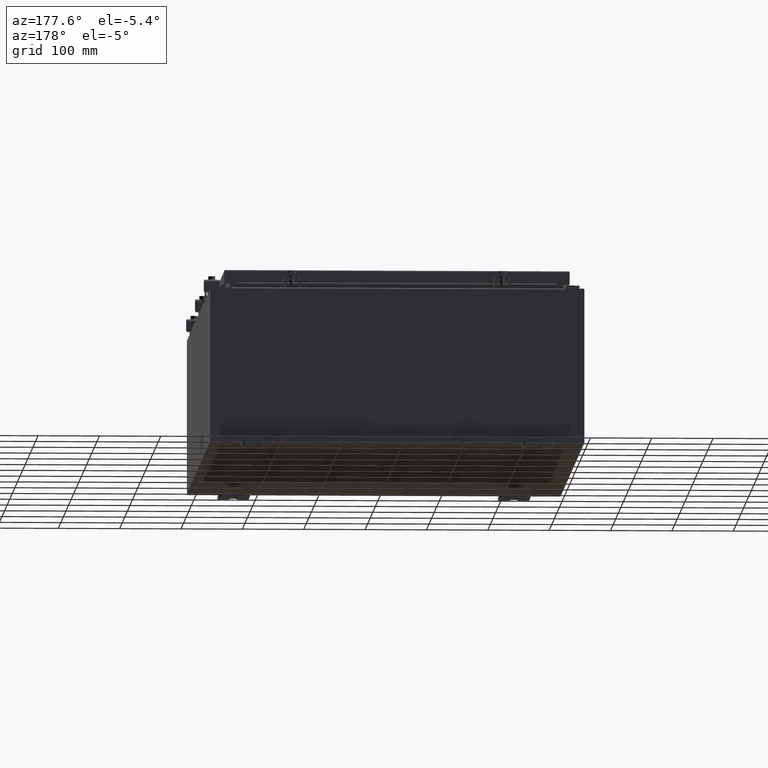
[diagram: clean part render]
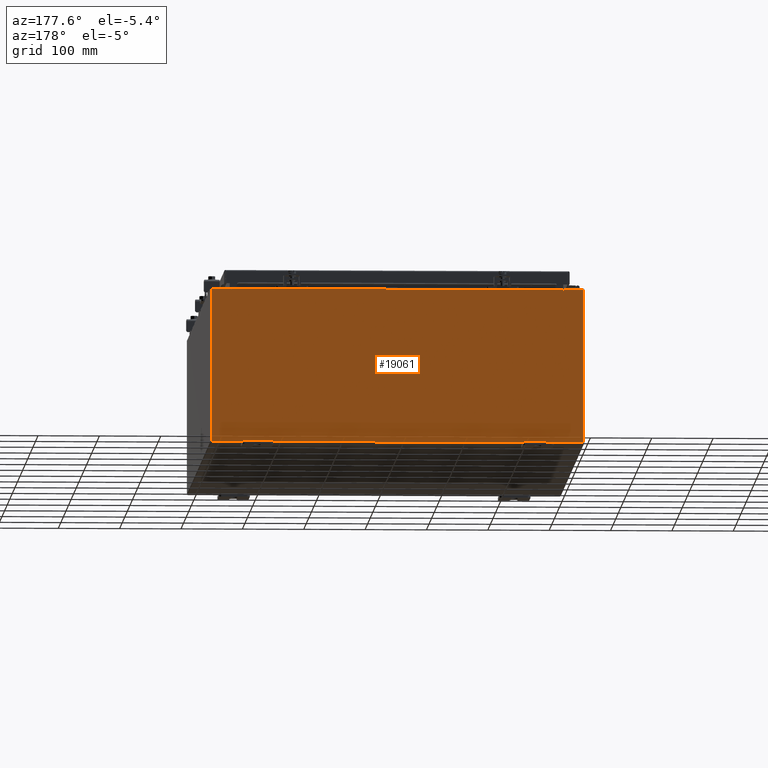
[diagram: same view with one face highlighted and labeled with its STEP entity id]
A machine part, auxiliary view. The second image highlights one B-rep face of the part: STEP entity #19061.
In plain terms, the highlighted planar face has unit normal (0, -1, 0).
Its self-contained STEP definition (entity closure, byte-faithful):
#155 = LINE ( 'NONE', #37041, #32700 ) ;
#387 = ORIENTED_EDGE ( 'NONE', *, *, #2944, .F. ) ;
#1609 = LINE ( 'NONE', #8137, #25561 ) ;
#1666 = VERTEX_POINT ( 'NONE', #24186 ) ;
#2027 = AXIS2_PLACEMENT_3D ( 'NONE', #37289, #37252, #37199 ) ;
#2944 = EDGE_CURVE ( 'NONE', #10464, #25505, #14728, .T. ) ;
#3521 = EDGE_CURVE ( 'NONE', #12131, #19201, #11615, .T. ) ;
#3647 = VECTOR ( 'NONE', #14720, 39.37007874015748100 ) ;
#3999 = ORIENTED_EDGE ( 'NONE', *, *, #3521, .F. ) ;
#4106 = CARTESIAN_POINT ( 'NONE',  ( 11.92530000000000000, 0.0000000000000000000, 4.925300000000000000 ) ) ;
#4348 = EDGE_CURVE ( 'NONE', #25505, #29976, #38493, .T. ) ;
#4865 = DIRECTION ( 'NONE',  ( -4.340572780400004900E-014, 0.0000000000000000000, -1.000000000000000000 ) ) ;
#6096 = VECTOR ( 'NONE', #16712, 39.37007874015748100 ) ;
#6948 = CARTESIAN_POINT ( 'NONE',  ( -11.92530000000000000, 0.0000000000000000000, 4.925300000000000000 ) ) ;
#7344 = CARTESIAN_POINT ( 'NONE',  ( -10.67455000000000200, 0.0000000000000000000, 4.925300000000000000 ) ) ;
#8075 = VERTEX_POINT ( 'NONE', #40054 ) ;
#8137 = CARTESIAN_POINT ( 'NONE',  ( 10.67454999999979000, -0.0000000000000000000, -4.633366117301795800E-013 ) ) ;
#8834 = AXIS2_PLACEMENT_3D ( 'NONE', #29726, #29628, #29475 ) ;
#8845 = LINE ( 'NONE', #29183, #25168 ) ;
#8995 = EDGE_CURVE ( 'NONE', #19201, #1666, #32018, .T. ) ;
#10464 = VERTEX_POINT ( 'NONE', #35818 ) ;
#10815 = CARTESIAN_POINT ( 'NONE',  ( 10.63720000000000400, 0.0000000000000000000, 0.0000000000000000000 ) ) ;
#10964 = CARTESIAN_POINT ( 'NONE',  ( -11.92530000000000000, 0.0000000000000000000, 4.925300000000000000 ) ) ;
#11327 = EDGE_CURVE ( 'NONE', #29976, #18070, #13536, .T. ) ;
#11524 = CARTESIAN_POINT ( 'NONE',  ( 10.67455000000000200, 0.0000000000000000000, 4.925300000000000000 ) ) ;
#11615 = CIRCLE ( 'NONE', #8834, 0.01867499999999949400 ) ;
#11789 = VECTOR ( 'NONE', #38230, 39.37007874015748100 ) ;
#12114 = EDGE_CURVE ( 'NONE', #13698, #8075, #30812, .T. ) ;
#12131 = VERTEX_POINT ( 'NONE', #40863 ) ;
#12288 = LINE ( 'NONE', #37451, #3647 ) ;
#13536 = LINE ( 'NONE', #17887, #38453 ) ;
#13559 = VERTEX_POINT ( 'NONE', #6948 ) ;
#13698 = VERTEX_POINT ( 'NONE', #27245 ) ;
#14720 = DIRECTION ( 'NONE',  ( -0.0000000000000000000, -0.0000000000000000000, 1.000000000000000000 ) ) ;
#14728 = LINE ( 'NONE', #31148, #6096 ) ;
#14866 = DIRECTION ( 'NONE',  ( -1.000000000000000000, -0.0000000000000000000, -0.0000000000000000000 ) ) ;
#15646 = CARTESIAN_POINT ( 'NONE',  ( -11.92530000000000000, 0.0000000000000000000, 4.925300000000000000 ) ) ;
#16316 = DIRECTION ( 'NONE',  ( 0.0000000000000000000, -0.0000000000000000000, -1.000000000000000000 ) ) ;
#16410 = ORIENTED_EDGE ( 'NONE', *, *, #8995, .F. ) ;
#16712 = DIRECTION ( 'NONE',  ( 0.0000000000000000000, 0.0000000000000000000, -1.000000000000000000 ) ) ;
#17887 = CARTESIAN_POINT ( 'NONE',  ( -10.67455000000000200, -0.0000000000000000000, 0.0000000000000000000 ) ) ;
#18021 = ORIENTED_EDGE ( 'NONE', *, *, #36079, .F. ) ;
#18070 = VERTEX_POINT ( 'NONE', #7344 ) ;
#19061 = ADVANCED_FACE ( 'NONE', ( #38726 ), #32337, .F. ) ;
#19201 = VERTEX_POINT ( 'NONE', #20424 ) ;
#20424 = CARTESIAN_POINT ( 'NONE',  ( 10.63720000000000400, 0.0000000000000000000, 4.874950000000000100 ) ) ;
#20774 = DIRECTION ( 'NONE',  ( 1.000000000000000000, 0.0000000000000000000, 0.0000000000000000000 ) ) ;
#20775 = EDGE_CURVE ( 'NONE', #13559, #18070, #41127, .T. ) ;
#20886 = VERTEX_POINT ( 'NONE', #11524 ) ;
#21750 = ORIENTED_EDGE ( 'NONE', *, *, #12114, .T. ) ;
#22220 = VECTOR ( 'NONE', #14866, 39.37007874015748100 ) ;
#23516 = ORIENTED_EDGE ( 'NONE', *, *, #20775, .T. ) ;
#24186 = CARTESIAN_POINT ( 'NONE',  ( 10.63720000000000400, 0.0000000000000000000, 4.912300000000000100 ) ) ;
#25168 = VECTOR ( 'NONE', #32430, 39.37007874015748100 ) ;
#25297 = AXIS2_PLACEMENT_3D ( 'NONE', #26004, #35768, #16316 ) ;
#25505 = VERTEX_POINT ( 'NONE', #31873 ) ;
#25561 = VECTOR ( 'NONE', #4865, 39.37007874015748100 ) ;
#26004 = CARTESIAN_POINT ( 'NONE',  ( 0.0000000000000000000, 0.0000000000000000000, 0.0000000000000000000 ) ) ;
#27245 = CARTESIAN_POINT ( 'NONE',  ( 11.92530000000000000, 0.0000000000000000000, -4.925300000000000000 ) ) ;
#27257 = EDGE_CURVE ( 'NONE', #10464, #1666, #8845, .T. ) ;
#27961 = ORIENTED_EDGE ( 'NONE', *, *, #27257, .T. ) ;
#28659 = ORIENTED_EDGE ( 'NONE', *, *, #11327, .F. ) ;
#29183 = CARTESIAN_POINT ( 'NONE',  ( -10.63720000000000400, -7.171100983368691200E-016, 4.912300000000000100 ) ) ;
#29475 = DIRECTION ( 'NONE',  ( 0.0000000000000000000, 0.0000000000000000000, -1.000000000000000000 ) ) ;
#29628 = DIRECTION ( 'NONE',  ( -0.0000000000000000000, 1.000000000000000000, -0.0000000000000000000 ) ) ;
#29726 = CARTESIAN_POINT ( 'NONE',  ( 10.65587500000000200, 0.0000000000000000000, 4.874950000000000100 ) ) ;
#29951 = ORIENTED_EDGE ( 'NONE', *, *, #32795, .T. ) ;
#29976 = VERTEX_POINT ( 'NONE', #36043 ) ;
#30719 = ORIENTED_EDGE ( 'NONE', *, *, #34933, .T. ) ;
#30812 = LINE ( 'NONE', #34295, #22220 ) ;
#31148 = CARTESIAN_POINT ( 'NONE',  ( -10.63720000000000400, -0.0000000000000000000, 0.0000000000000000000 ) ) ;
#31436 = VECTOR ( 'NONE', #20774, 39.37007874015748100 ) ;
#31869 = EDGE_CURVE ( 'NONE', #20886, #41310, #37728, .T. ) ;
#31873 = CARTESIAN_POINT ( 'NONE',  ( -10.63720000000000400, -0.0000000000000000000, 4.874950000000000100 ) ) ;
#32018 = LINE ( 'NONE', #10815, #38652 ) ;
#32337 = PLANE ( 'NONE',  #25297 ) ;
#32430 = DIRECTION ( 'NONE',  ( 1.000000000000000000, 0.0000000000000000000, 0.0000000000000000000 ) ) ;
#32700 = VECTOR ( 'NONE', #34036, 39.37007874015748100 ) ;
#32795 = EDGE_CURVE ( 'NONE', #8075, #13559, #12288, .T. ) ;
#34036 = DIRECTION ( 'NONE',  ( 0.0000000000000000000, 0.0000000000000000000, -1.000000000000000000 ) ) ;
#34295 = CARTESIAN_POINT ( 'NONE',  ( -11.92530000000000000, 0.0000000000000000000, -4.925300000000000000 ) ) ;
#34933 = EDGE_CURVE ( 'NONE', #41310, #13698, #155, .T. ) ;
#35768 = DIRECTION ( 'NONE',  ( 0.0000000000000000000, -1.000000000000000000, 0.0000000000000000000 ) ) ;
#35818 = CARTESIAN_POINT ( 'NONE',  ( -10.63720000000000400, -7.171100983368691200E-016, 4.912300000000000100 ) ) ;
#36043 = CARTESIAN_POINT ( 'NONE',  ( -10.67455000000000200, 0.0000000000000000000, 4.874950000000000100 ) ) ;
#36079 = EDGE_CURVE ( 'NONE', #20886, #12131, #1609, .T. ) ;
#36814 = DIRECTION ( 'NONE',  ( 0.0000000000000000000, 0.0000000000000000000, 1.000000000000000000 ) ) ;
#37041 = CARTESIAN_POINT ( 'NONE',  ( 11.92530000000000000, 0.0000000000000000000, 4.925300000000000000 ) ) ;
#37199 = DIRECTION ( 'NONE',  ( 0.0000000000000000000, 0.0000000000000000000, -1.000000000000000000 ) ) ;
#37252 = DIRECTION ( 'NONE',  ( -0.0000000000000000000, 1.000000000000000000, -0.0000000000000000000 ) ) ;
#37289 = CARTESIAN_POINT ( 'NONE',  ( -10.65587500000000200, 0.0000000000000000000, 4.874950000000000100 ) ) ;
#37451 = CARTESIAN_POINT ( 'NONE',  ( -11.92530000000000000, 0.0000000000000000000, 4.925300000000000000 ) ) ;
#37728 = LINE ( 'NONE', #15646, #11789 ) ;
#38230 = DIRECTION ( 'NONE',  ( 1.000000000000000000, 0.0000000000000000000, 0.0000000000000000000 ) ) ;
#38453 = VECTOR ( 'NONE', #40462, 39.37007874015748100 ) ;
#38493 = CIRCLE ( 'NONE', #2027, 0.01867499999999949400 ) ;
#38652 = VECTOR ( 'NONE', #36814, 39.37007874015748100 ) ;
#38726 = FACE_OUTER_BOUND ( 'NONE', #40051, .T. ) ;
#38892 = ORIENTED_EDGE ( 'NONE', *, *, #31869, .T. ) ;
#38962 = ORIENTED_EDGE ( 'NONE', *, *, #4348, .F. ) ;
#40051 = EDGE_LOOP ( 'NONE', ( #28659, #38962, #387, #27961, #16410, #3999, #18021, #38892, #30719, #21750, #29951, #23516 ) ) ;
#40054 = CARTESIAN_POINT ( 'NONE',  ( -11.92530000000000000, 0.0000000000000000000, -4.925300000000000000 ) ) ;
#40462 = DIRECTION ( 'NONE',  ( 0.0000000000000000000, 0.0000000000000000000, 1.000000000000000000 ) ) ;
#40863 = CARTESIAN_POINT ( 'NONE',  ( 10.67455000000000200, 0.0000000000000000000, 4.874950000000000100 ) ) ;
#41127 = LINE ( 'NONE', #10964, #31436 ) ;
#41310 = VERTEX_POINT ( 'NONE', #4106 ) ;